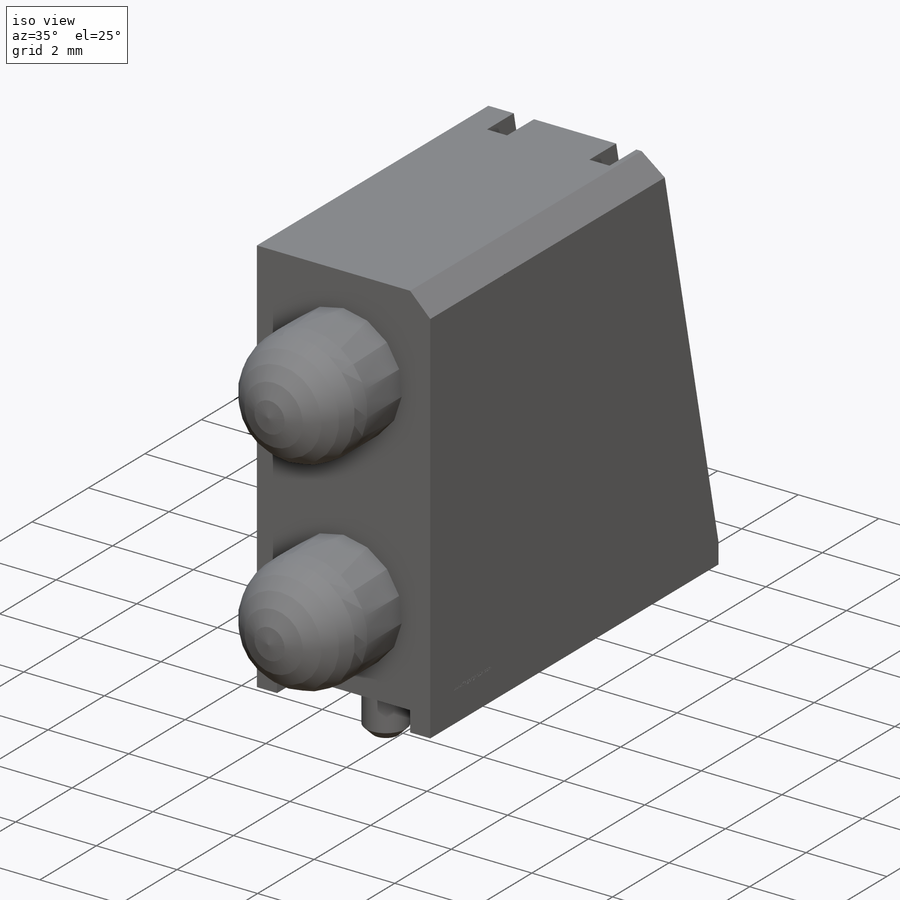
[diagram: iso view]
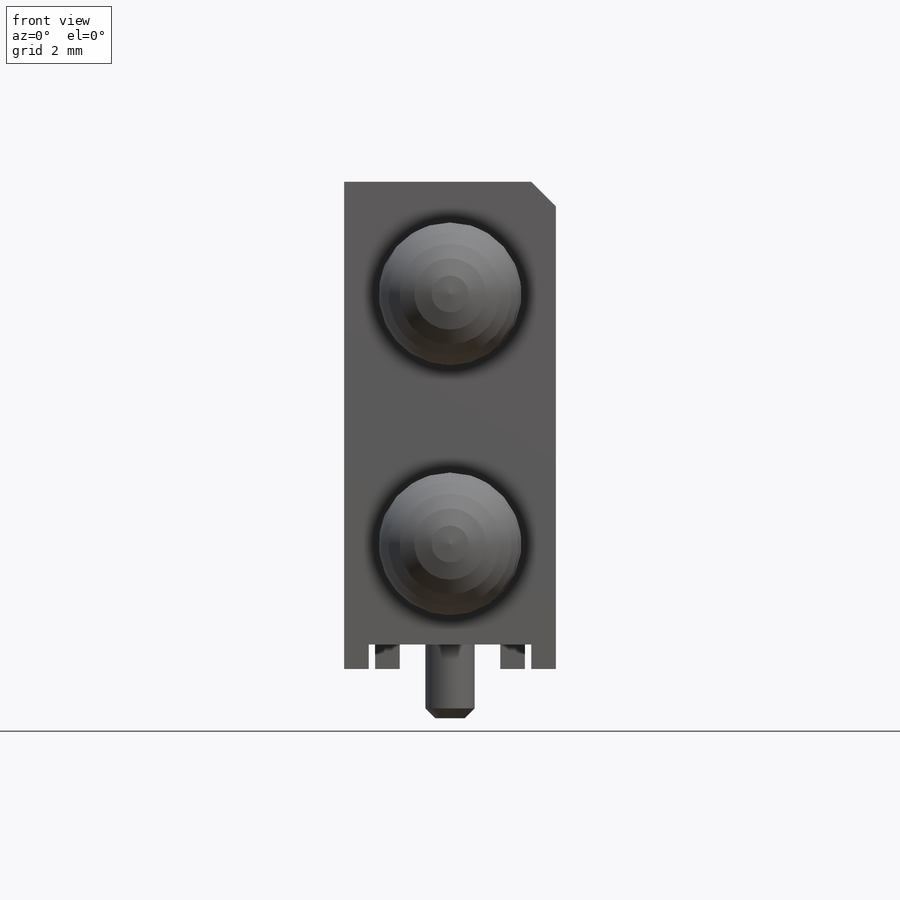
[diagram: front view]
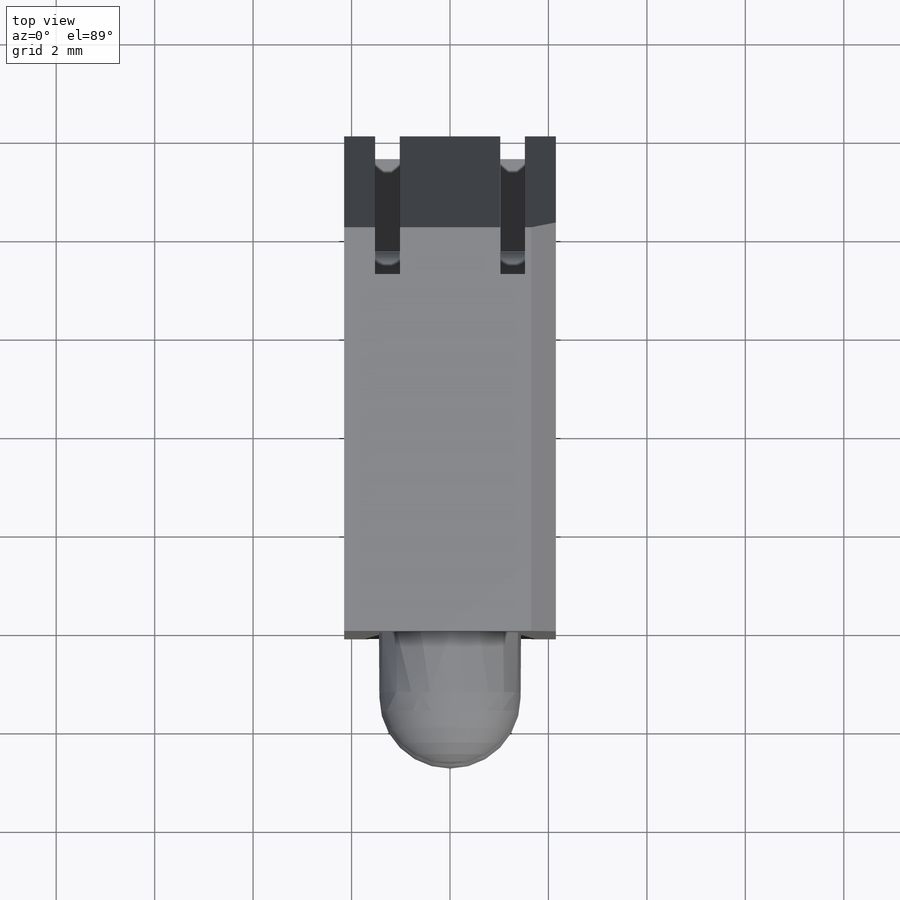
[diagram: top view]
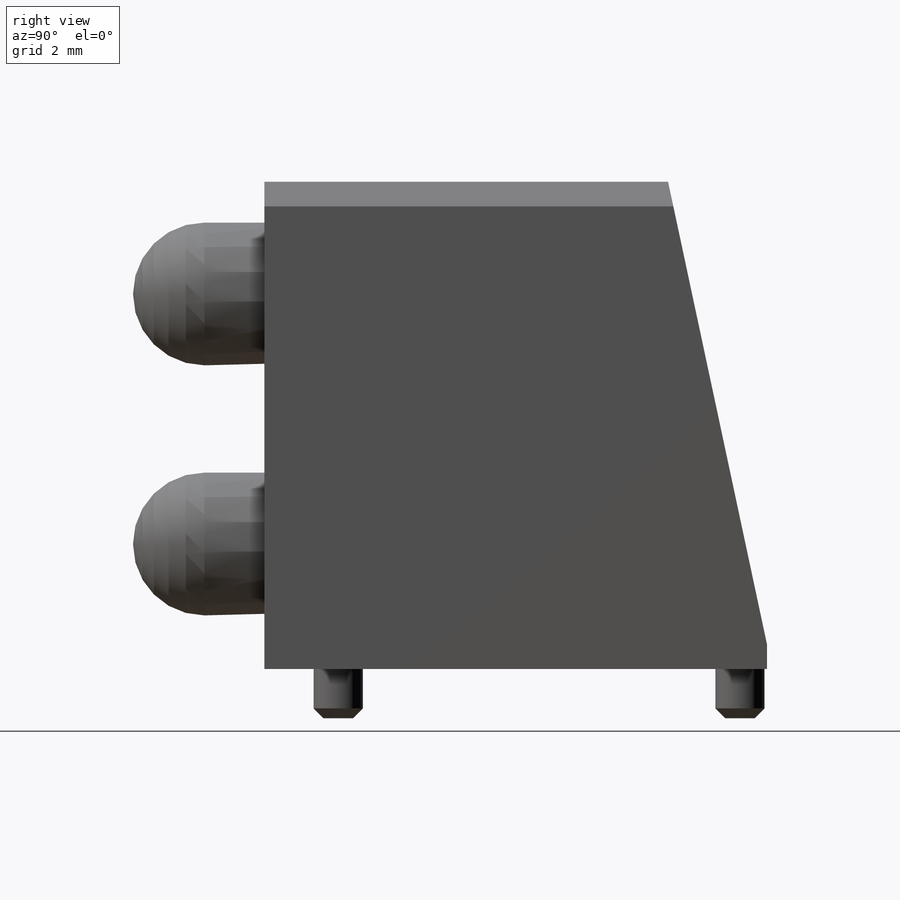
[diagram: right view]
SOLIDWORKS PART (.sldprt)
format: sldprt  version: not decoded by parser v0  size: 915,968 bytes
history: native  units: mm
features: sketch x12, extrude x6, fillet x5, cut_extrude x4, revolve x2, chamfer x2, material x1 (+11 scaffold rows collapsed)
feature tree (43):
  scaffold x11  (default folders/planes/origin — collapsed)
  material  "Material <not specified>"
  sketch  "Sketch1"  dims[c1.D4=2.9mm c1.D7=2.9mm c1.D1=9.9mm c1.D2=8.2mm c1.D3=2.67mm c1.D5=2.54mm c1.D6=5.08mm c1.D8=5.08mm c1.D9=0.5mm c1.D10=1.5mm c1.D11=8.16mm c1.D12=0.55mm c2.D10=10.21mm]
  extrude  "Extrude1"  Depth=4.3mm
  revolve  "Revolve1"  [1 undecoded]
  sketch  "Sketch1<3>"  dims[D1=360.0deg]
  sketch  "Sketch2"  dims[D4=0.5mm D1=0.5mm D2=0.5mm D3=0.5mm]
  cut_extrude  "Cut-Extrude1"  [1 undecoded]
  sketch  "Sketch3"  dims[c1.D1=0.5mm c1.D2=0.5mm c1.D3=4.4mm c1.D4=2.54mm c2.D1=0.5mm c2.D2=0.5mm c2.D3=0.5mm c2.D4=2.54mm c2.D5=4.96mm c2.D6=2.54mm]
  revolve  "Revolve2"  [1 undecoded]
  sketch  "Sketch1<5>"  dims[D1=360.0deg]
  cut_extrude  "Cut-Extrude2"  [1 undecoded]
  extrude  "Extrude3"  [1 undecoded]
  sketch  "Sketch3<6>"
  extrude  "Extrude4"  [1 undecoded]
  sketch  "Sketch3<7>"  dims[D1=0.5mm]
  cut_extrude  "Cut-Extrude3"  [1 undecoded]
  sketch  "Sketch3<8>"
  chamfer  "Chamfer1"  Distance=0.5mm Angle=45deg
  sketch  "Sketch4"  dims[D1=3.0mm]
  cut_extrude  "Cut-Extrude4"  Depth=0.01mm
  sketch  "Sketch5"
  extrude  "Extrude5"  Depth=2.5mm
  fillet  "Fillet1"  Radius=0.5mm
  sketch  "Sketch6"  dims[D1=0.5mm D2=0.5mm]
  fillet  "Fillet2"  Radius=0.5mm
  fillet  "Fillet3"  Radius=0.5mm
  extrude  "Extrude13"  Depth=2.5mm
  fillet  "Fillet4"  Radius=0.5mm
  fillet  "Fillet5"  Radius=0.5mm
  sketch  "Sketch7"  dims[D3=1.0mm D1=1.5mm D2=8.16mm D4=1.65mm]
  extrude  "Extrude14"  Depth=1mm
  chamfer  "Chamfer2"  Distance=0.2mm Angle=45deg
decode coverage: 21 of 31 modeling features carry decoded parameters
note: 7 parameter values undecoded
summary: no parameter record found for 7 features
note: suppression state not decoded; provenance and decode notes live in map.json
